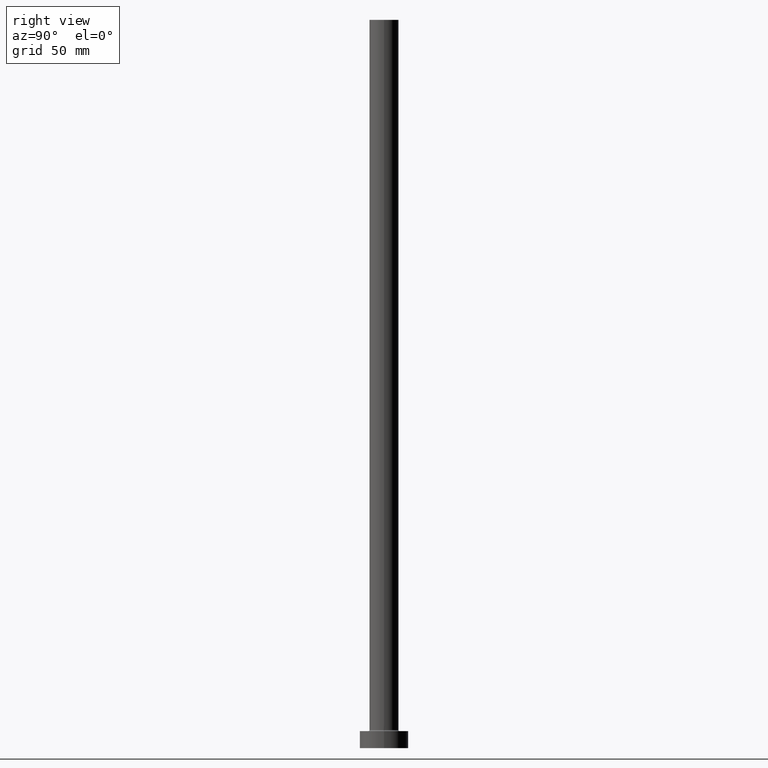
[diagram: clean part render]
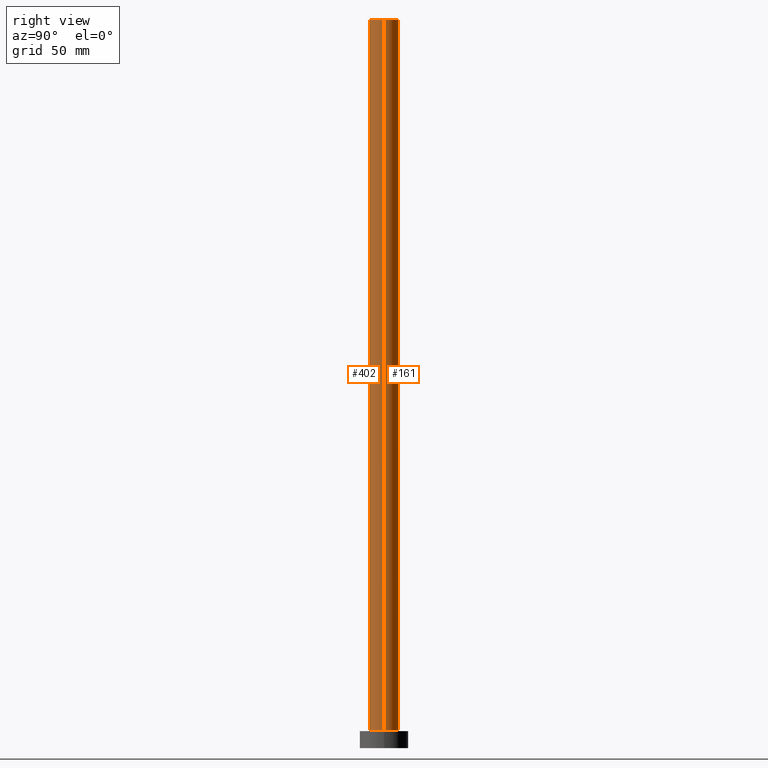
[diagram: same view with one multi-face feature highlighted, each face labeled with its STEP entity id]
A machine part, right view. The highlighted faces form ONE feature: a constant-radius fillet chain: 2 tangent blend faces with common blend radius 6 mm. The faces share edges in the B-rep.
Their STEP definitions:
[1] entity #402 (Cylinder):
#22 = VERTEX_POINT ( 'NONE', #90 ) ;
#44 = DIRECTION ( 'NONE',  ( -0.000000000000000000, -0.000000000000000000, -1.000000000000000000 ) ) ;
#51 = VERTEX_POINT ( 'NONE', #382 ) ;
#66 = EDGE_CURVE ( 'NONE', #209, #22, #371, .T. ) ;
#80 = AXIS2_PLACEMENT_3D ( 'NONE', #123, #258, #379 ) ;
#85 = VERTEX_POINT ( 'NONE', #433 ) ;
#90 = CARTESIAN_POINT ( 'NONE',  ( -6.000000000000000888, 0.000000000000000000, 7.500000000000007105 ) ) ;
#114 = DIRECTION ( 'NONE',  ( 0.000000000000000000, 0.000000000000000000, 1.000000000000000000 ) ) ;
#123 = CARTESIAN_POINT ( 'NONE',  ( 0.000000000000000000, 0.000000000000000000, 300.0000000000000000 ) ) ;
#127 = EDGE_CURVE ( 'NONE', #22, #51, #336, .T. ) ;
#138 = EDGE_CURVE ( 'NONE', #85, #51, #187, .T. ) ;
#173 = CARTESIAN_POINT ( 'NONE',  ( 0.000000000000000000, 0.000000000000000000, 300.0000000000000000 ) ) ;
#184 = EDGE_LOOP ( 'NONE', ( #320, #213, #360, #426 ) ) ;
#187 = LINE ( 'NONE', #329, #308 ) ;
#209 = VERTEX_POINT ( 'NONE', #362 ) ;
#210 = DIRECTION ( 'NONE',  ( 0.000000000000000000, 0.000000000000000000, 1.000000000000000000 ) ) ;
#213 = ORIENTED_EDGE ( 'NONE', *, *, #429, .F. ) ;
#217 = AXIS2_PLACEMENT_3D ( 'NONE', #173, #210, #392 ) ;
#218 = DIRECTION ( 'NONE',  ( 1.000000000000000000, 0.000000000000000000, 0.000000000000000000 ) ) ;
#258 = DIRECTION ( 'NONE',  ( -0.000000000000000000, -0.000000000000000000, -1.000000000000000000 ) ) ;
#291 = CARTESIAN_POINT ( 'NONE',  ( -6.000000000000000888, 0.000000000000000000, 300.0000000000000000 ) ) ;
#296 = CYLINDRICAL_SURFACE ( 'NONE', #80, 6.000000000000000888 ) ;
#308 = VECTOR ( 'NONE', #427, 1000.000000000000000 ) ;
#320 = ORIENTED_EDGE ( 'NONE', *, *, #138, .F. ) ;
#329 = CARTESIAN_POINT ( 'NONE',  ( 6.000000000000000888, 7.347880794884120722E-16, 300.0000000000000000 ) ) ;
#336 = CIRCLE ( 'NONE', #411, 6.000000000000000888 ) ;
#360 = ORIENTED_EDGE ( 'NONE', *, *, #66, .T. ) ;
#362 = CARTESIAN_POINT ( 'NONE',  ( -6.000000000000000888, 0.000000000000000000, 300.0000000000000000 ) ) ;
#371 = LINE ( 'NONE', #291, #461 ) ;
#379 = DIRECTION ( 'NONE',  ( -1.000000000000000000, 0.000000000000000000, 0.000000000000000000 ) ) ;
#382 = CARTESIAN_POINT ( 'NONE',  ( 6.000000000000000888, 7.347880794884120722E-16, 7.500000000000007105 ) ) ;
#385 = CIRCLE ( 'NONE', #217, 6.000000000000000888 ) ;
#392 = DIRECTION ( 'NONE',  ( 1.000000000000000000, 0.000000000000000000, 0.000000000000000000 ) ) ;
#396 = CARTESIAN_POINT ( 'NONE',  ( 0.000000000000000000, 0.000000000000000000, 7.500000000000007105 ) ) ;
#402 = ADVANCED_FACE ( 'NONE', ( #441 ), #296, .T. ) ;
#411 = AXIS2_PLACEMENT_3D ( 'NONE', #396, #114, #218 ) ;
#426 = ORIENTED_EDGE ( 'NONE', *, *, #127, .T. ) ;
#427 = DIRECTION ( 'NONE',  ( -0.000000000000000000, -0.000000000000000000, -1.000000000000000000 ) ) ;
#429 = EDGE_CURVE ( 'NONE', #209, #85, #385, .T. ) ;
#433 = CARTESIAN_POINT ( 'NONE',  ( 6.000000000000000888, 7.347880794884120722E-16, 300.0000000000000000 ) ) ;
#441 = FACE_OUTER_BOUND ( 'NONE', #184, .T. ) ;
#461 = VECTOR ( 'NONE', #44, 1000.000000000000000 ) ;
[2] entity #161 (Cylinder):
#22 = VERTEX_POINT ( 'NONE', #90 ) ;
#44 = DIRECTION ( 'NONE',  ( -0.000000000000000000, -0.000000000000000000, -1.000000000000000000 ) ) ;
#51 = VERTEX_POINT ( 'NONE', #382 ) ;
#53 = CARTESIAN_POINT ( 'NONE',  ( 0.000000000000000000, 0.000000000000000000, 7.500000000000007105 ) ) ;
#54 = EDGE_CURVE ( 'NONE', #85, #209, #192, .T. ) ;
#63 = AXIS2_PLACEMENT_3D ( 'NONE', #53, #201, #344 ) ;
#66 = EDGE_CURVE ( 'NONE', #209, #22, #371, .T. ) ;
#73 = DIRECTION ( 'NONE',  ( -1.000000000000000000, 0.000000000000000000, 0.000000000000000000 ) ) ;
#76 = CYLINDRICAL_SURFACE ( 'NONE', #96, 6.000000000000000888 ) ;
#83 = ORIENTED_EDGE ( 'NONE', *, *, #138, .T. ) ;
#85 = VERTEX_POINT ( 'NONE', #433 ) ;
#90 = CARTESIAN_POINT ( 'NONE',  ( -6.000000000000000888, 0.000000000000000000, 7.500000000000007105 ) ) ;
#96 = AXIS2_PLACEMENT_3D ( 'NONE', #108, #111, #73 ) ;
#108 = CARTESIAN_POINT ( 'NONE',  ( 0.000000000000000000, 0.000000000000000000, 300.0000000000000000 ) ) ;
#111 = DIRECTION ( 'NONE',  ( -0.000000000000000000, -0.000000000000000000, -1.000000000000000000 ) ) ;
#130 = DIRECTION ( 'NONE',  ( 1.000000000000000000, 0.000000000000000000, 0.000000000000000000 ) ) ;
#138 = EDGE_CURVE ( 'NONE', #85, #51, #187, .T. ) ;
#161 = ADVANCED_FACE ( 'NONE', ( #395 ), #76, .T. ) ;
#187 = LINE ( 'NONE', #329, #308 ) ;
#192 = CIRCLE ( 'NONE', #310, 6.000000000000000888 ) ;
#200 = CARTESIAN_POINT ( 'NONE',  ( 0.000000000000000000, 0.000000000000000000, 300.0000000000000000 ) ) ;
#201 = DIRECTION ( 'NONE',  ( 0.000000000000000000, 0.000000000000000000, 1.000000000000000000 ) ) ;
#203 = EDGE_LOOP ( 'NONE', ( #342, #83, #215, #423 ) ) ;
#209 = VERTEX_POINT ( 'NONE', #362 ) ;
#215 = ORIENTED_EDGE ( 'NONE', *, *, #399, .T. ) ;
#241 = CIRCLE ( 'NONE', #63, 6.000000000000000888 ) ;
#291 = CARTESIAN_POINT ( 'NONE',  ( -6.000000000000000888, 0.000000000000000000, 300.0000000000000000 ) ) ;
#308 = VECTOR ( 'NONE', #427, 1000.000000000000000 ) ;
#310 = AXIS2_PLACEMENT_3D ( 'NONE', #200, #449, #130 ) ;
#329 = CARTESIAN_POINT ( 'NONE',  ( 6.000000000000000888, 7.347880794884120722E-16, 300.0000000000000000 ) ) ;
#342 = ORIENTED_EDGE ( 'NONE', *, *, #54, .F. ) ;
#344 = DIRECTION ( 'NONE',  ( 1.000000000000000000, 0.000000000000000000, 0.000000000000000000 ) ) ;
#362 = CARTESIAN_POINT ( 'NONE',  ( -6.000000000000000888, 0.000000000000000000, 300.0000000000000000 ) ) ;
#371 = LINE ( 'NONE', #291, #461 ) ;
#382 = CARTESIAN_POINT ( 'NONE',  ( 6.000000000000000888, 7.347880794884120722E-16, 7.500000000000007105 ) ) ;
#395 = FACE_OUTER_BOUND ( 'NONE', #203, .T. ) ;
#399 = EDGE_CURVE ( 'NONE', #51, #22, #241, .T. ) ;
#423 = ORIENTED_EDGE ( 'NONE', *, *, #66, .F. ) ;
#427 = DIRECTION ( 'NONE',  ( -0.000000000000000000, -0.000000000000000000, -1.000000000000000000 ) ) ;
#433 = CARTESIAN_POINT ( 'NONE',  ( 6.000000000000000888, 7.347880794884120722E-16, 300.0000000000000000 ) ) ;
#449 = DIRECTION ( 'NONE',  ( 0.000000000000000000, 0.000000000000000000, 1.000000000000000000 ) ) ;
#461 = VECTOR ( 'NONE', #44, 1000.000000000000000 ) ;